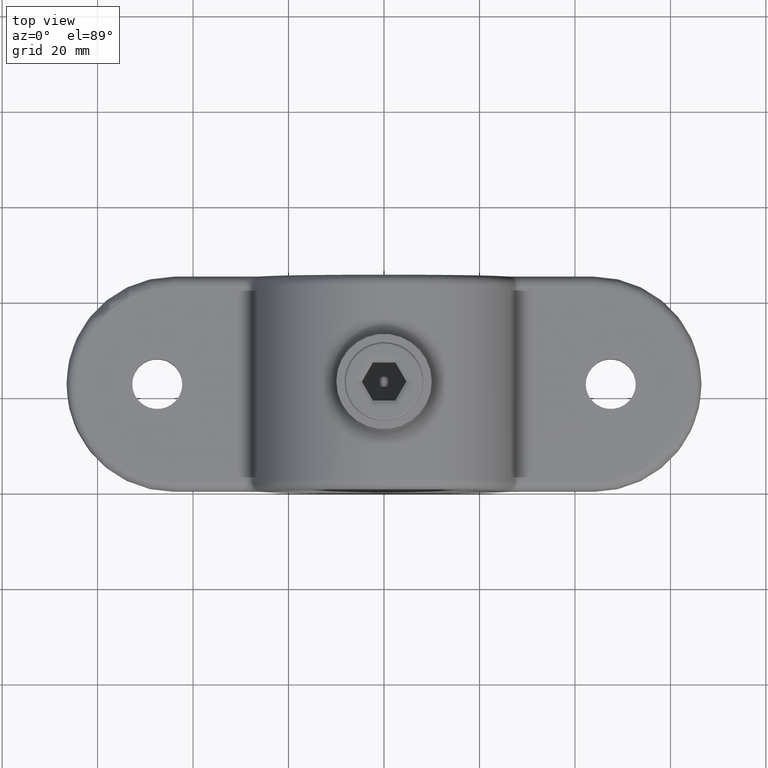
[diagram: clean part render]
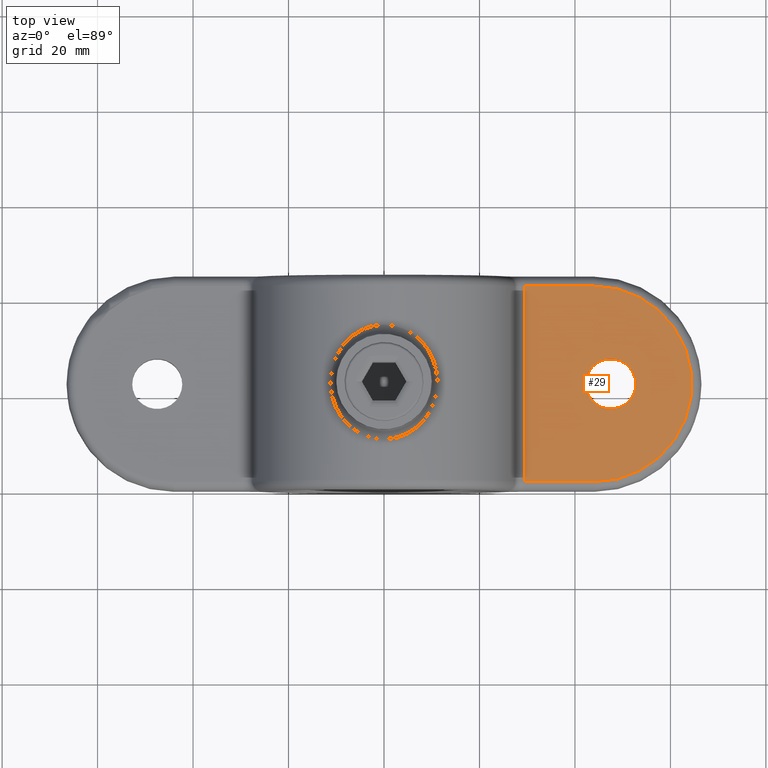
[diagram: same view with one face highlighted and labeled with its STEP entity id]
A machine part, top view. The second image highlights one B-rep face of the part: STEP entity #29.
In plain terms, the highlighted planar face has unit normal (0, 0, 1).
Its self-contained STEP definition (entity closure, byte-faithful):
#7 = VERTEX_POINT ( 'NONE', #301 ) ;
#29 = ADVANCED_FACE ( 'NONE', ( #1091, #1231 ), #1151, .T. ) ;
#70 = EDGE_CURVE ( 'NONE', #2636, #1897, #892, .T. ) ;
#83 = VECTOR ( 'NONE', #2511, 1000.000000000000000 ) ;
#90 = EDGE_CURVE ( 'NONE', #7, #2636, #822, .T. ) ;
#128 = CARTESIAN_POINT ( 'NONE',  ( 29.39387691339813458, 22.50000000000000000, 4.000000000000000000 ) ) ;
#146 = EDGE_CURVE ( 'NONE', #2660, #7, #2007, .T. ) ;
#278 = ORIENTED_EDGE ( 'NONE', *, *, #1207, .T. ) ;
#294 = VECTOR ( 'NONE', #777, 1000.000000000000000 ) ;
#301 = CARTESIAN_POINT ( 'NONE',  ( 29.39387691339813458, 2.000000000000001776, 4.000000000000000000 ) ) ;
#308 = DIRECTION ( 'NONE',  ( 1.000000000000000000, 0.000000000000000000, -0.000000000000000000 ) ) ;
#317 = CARTESIAN_POINT ( 'NONE',  ( 44.00000000000000711, 2.000000000000001776, 4.000000000000000000 ) ) ;
#628 = CIRCLE ( 'NONE', #2860, 5.249999999999997335 ) ;
#712 = DIRECTION ( 'NONE',  ( 1.000000000000000000, 0.000000000000000000, 0.000000000000000000 ) ) ;
#720 = ORIENTED_EDGE ( 'NONE', *, *, #90, .T. ) ;
#777 = DIRECTION ( 'NONE',  ( 0.000000000000000000, -1.000000000000000000, 0.000000000000000000 ) ) ;
#822 = LINE ( 'NONE', #317, #83 ) ;
#836 = CARTESIAN_POINT ( 'NONE',  ( 52.74999999999999289, 22.50000000000000355, 4.000000000000000000 ) ) ;
#843 = ORIENTED_EDGE ( 'NONE', *, *, #146, .T. ) ;
#892 = CIRCLE ( 'NONE', #1670, 20.49999999999998934 ) ;
#950 = DIRECTION ( 'NONE',  ( 0.000000000000000000, 0.000000000000000000, 1.000000000000000000 ) ) ;
#967 = CARTESIAN_POINT ( 'NONE',  ( 44.00000000000001421, 43.00000000000000000, 4.000000000000000000 ) ) ;
#1091 = FACE_OUTER_BOUND ( 'NONE', #2327, .T. ) ;
#1151 = PLANE ( 'NONE',  #1359 ) ;
#1207 = EDGE_CURVE ( 'NONE', #1897, #2660, #1752, .T. ) ;
#1231 = FACE_BOUND ( 'NONE', #1829, .T. ) ;
#1256 = VERTEX_POINT ( 'NONE', #836 ) ;
#1359 = AXIS2_PLACEMENT_3D ( 'NONE', #2267, #950, #308 ) ;
#1390 = DIRECTION ( 'NONE',  ( 0.000000000000000000, 0.000000000000000000, 1.000000000000000000 ) ) ;
#1409 = EDGE_CURVE ( 'NONE', #1256, #1256, #628, .T. ) ;
#1448 = DIRECTION ( 'NONE',  ( 0.000000000000000000, 0.000000000000000000, 1.000000000000000000 ) ) ;
#1470 = ORIENTED_EDGE ( 'NONE', *, *, #70, .T. ) ;
#1507 = DIRECTION ( 'NONE',  ( -1.000000000000000000, 0.000000000000000000, 0.000000000000000000 ) ) ;
#1566 = ORIENTED_EDGE ( 'NONE', *, *, #1409, .F. ) ;
#1646 = DIRECTION ( 'NONE',  ( 1.000000000000000000, 0.000000000000000000, 0.000000000000000000 ) ) ;
#1670 = AXIS2_PLACEMENT_3D ( 'NONE', #2084, #1448, #1646 ) ;
#1686 = VECTOR ( 'NONE', #1507, 1000.000000000000000 ) ;
#1724 = CARTESIAN_POINT ( 'NONE',  ( 44.00000000000001421, 43.00000000000000000, 4.000000000000000000 ) ) ;
#1752 = LINE ( 'NONE', #967, #1686 ) ;
#1829 = EDGE_LOOP ( 'NONE', ( #1566 ) ) ;
#1897 = VERTEX_POINT ( 'NONE', #1724 ) ;
#2007 = LINE ( 'NONE', #128, #294 ) ;
#2039 = CARTESIAN_POINT ( 'NONE',  ( 47.49999999999999289, 22.50000000000000355, 4.000000000000000000 ) ) ;
#2084 = CARTESIAN_POINT ( 'NONE',  ( 44.00000000000001421, 22.50000000000000000, 4.000000000000000000 ) ) ;
#2146 = CARTESIAN_POINT ( 'NONE',  ( 44.00000000000000711, 2.000000000000001776, 4.000000000000000000 ) ) ;
#2267 = CARTESIAN_POINT ( 'NONE',  ( 44.00000000000001421, 22.50000000000000000, 4.000000000000000000 ) ) ;
#2322 = CARTESIAN_POINT ( 'NONE',  ( 29.39387691339813458, 43.00000000000000000, 4.000000000000000000 ) ) ;
#2327 = EDGE_LOOP ( 'NONE', ( #843, #720, #1470, #278 ) ) ;
#2511 = DIRECTION ( 'NONE',  ( 1.000000000000000000, -0.000000000000000000, 0.000000000000000000 ) ) ;
#2636 = VERTEX_POINT ( 'NONE', #2146 ) ;
#2660 = VERTEX_POINT ( 'NONE', #2322 ) ;
#2860 = AXIS2_PLACEMENT_3D ( 'NONE', #2039, #1390, #712 ) ;